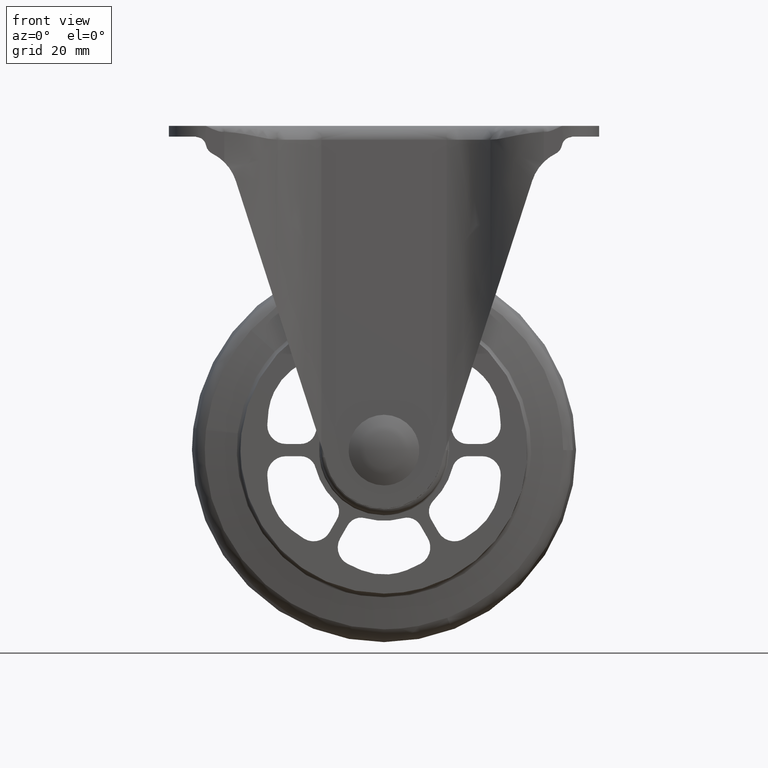
[diagram: clean part render]
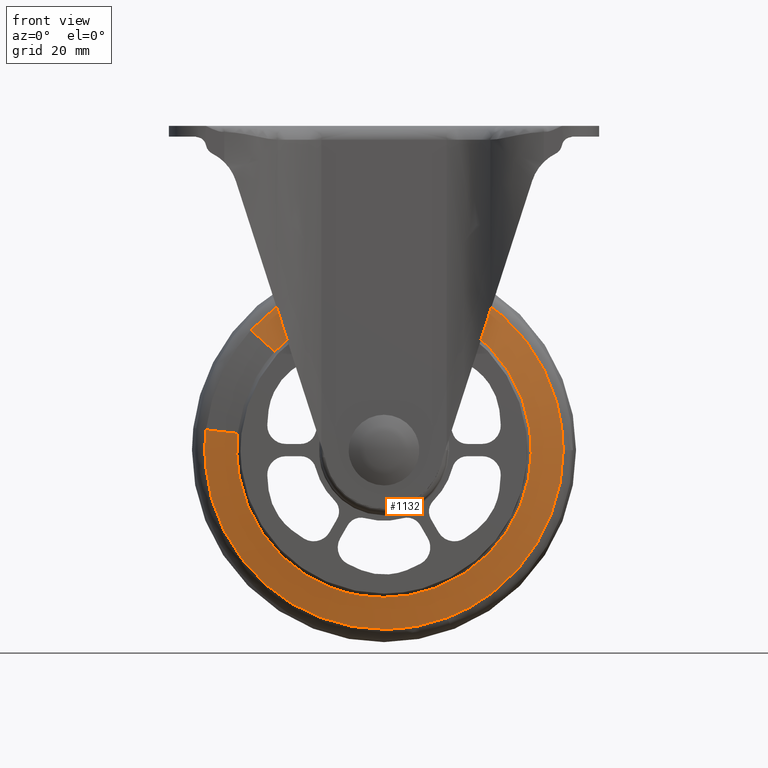
[diagram: same view with one face highlighted and labeled with its STEP entity id]
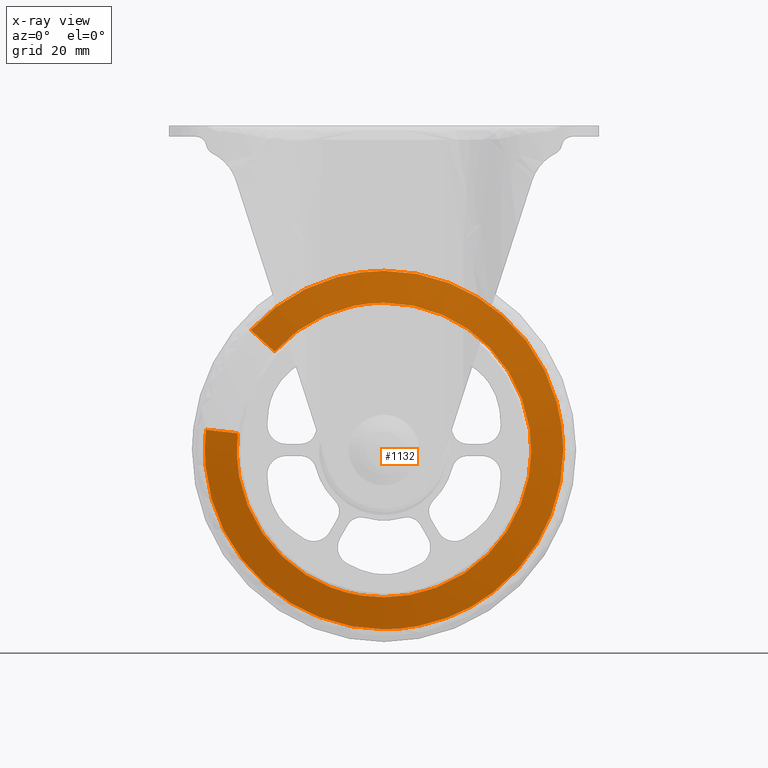
[diagram: x-ray of the same camera — body ghosted, the highlighted face saturated]
A machine part, front view. The second image highlights one B-rep face of the part: STEP entity #1132.
The next image is the same camera in x-ray: the body ghosted, the highlighted face saturated — about 0% of this face is hidden behind the body in this view.
In plain terms, the highlighted face is a freeform B-spline surface patch.
Its self-contained STEP definition (entity closure, byte-faithful):
#934=CARTESIAN_POINT('',(-35.404688449193927,-16.933381824167075,31.910486017992532));
#935=CARTESIAN_POINT('',(-18.979766938633500,-16.933381824167075,50.133938602073215));
#936=CARTESIAN_POINT('',(5.395616074959293,-16.933381824167071,47.356714510833918));
#937=CARTESIAN_POINT('',(52.752330585793210,-16.933381824167075,41.961098435874675));
#938=CARTESIAN_POINT('',(47.356714510833967,-16.933381824167071,-5.395616074959236));
#939=CARTESIAN_POINT('',(41.961098435874739,-16.933381824167075,-52.752330585793160));
#940=CARTESIAN_POINT('',(-5.395616074959179,-16.933381824167071,-47.356714510833918));
#941=CARTESIAN_POINT('',(-52.752330585793096,-16.933381824167075,-41.961098435874675));
#942=CARTESIAN_POINT('',(-47.356714510833861,-16.933381824167071,5.395616074959236));
#943=CARTESIAN_POINT('',(-43.515426536678717,-14.881109458047087,39.220749310033305));
#944=CARTESIAN_POINT('',(-23.327776350484832,-14.881109458047096,61.618949856415036));
#945=CARTESIAN_POINT('',(6.631679170597501,-14.881109458047090,58.205501067234422));
#946=CARTESIAN_POINT('',(64.837180237831916,-14.881109458047092,51.573821896636986));
#947=CARTESIAN_POINT('',(58.205501067234479,-14.881109458047090,-6.631679170597444));
#948=CARTESIAN_POINT('',(51.573821896637035,-14.881109458047092,-64.837180237831859));
#949=CARTESIAN_POINT('',(-6.631679170597387,-14.881109458047090,-58.205501067234422));
#950=CARTESIAN_POINT('',(-64.837180237831802,-14.881109458047092,-51.573821896636986));
#951=CARTESIAN_POINT('',(-58.205501067234373,-14.881109458047090,6.631679170597444));
#959=(BOUNDED_SURFACE()B_SPLINE_SURFACE(2,1,((#934,#943),(#935,#944),(#936,#945),(#937,#946),(#938,#947),(#939,#948),(#940,#949),(#941,#950),(#942,#951)),.UNSPECIFIED.,.F.,.F.,.U.)B_SPLINE_SURFACE_WITH_KNOTS((3,2,2,2,3),(2,2),(0.0,58.237176044852667,155.299136119607110,252.361096194361610,349.423056269116100),(0.0,11.110168477006770),.UNSPECIFIED.)GEOMETRIC_REPRESENTATION_ITEM()RATIONAL_B_SPLINE_SURFACE(((0.859411254969543,0.859411254969543),(0.824264068711928,0.824264068711928),(1.0,1.0),(0.707106781186548,0.707106781186548),(1.0,1.0),(0.707106781186548,0.707106781186548),(1.0,1.0),(0.707106781186548,0.707106781186548),(1.0,1.0)))REPRESENTATION_ITEM('')SURFACE());
#960=CARTESIAN_POINT('',(-35.597686389317431,-16.884547262504849,32.084436371476038));
#961=VERTEX_POINT('',#960);
#962=CARTESIAN_POINT('',(5.684342E-014,-16.884547262504899,47.922920753512798));
#963=VERTEX_POINT('',#962);
#964=CARTESIAN_POINT('',(-35.597686389317438,-16.884547262504849,32.084436371476038));
#965=CARTESIAN_POINT('',(-21.322352907841903,-16.884547262504903,47.922920753512813));
#966=CARTESIAN_POINT('',(5.684342E-014,-16.884547262504899,47.922920753512798));
#974=(BOUNDED_CURVE()B_SPLINE_CURVE(2,(#964,#965,#966),.UNSPECIFIED.,.F.,.U.)B_SPLINE_CURVE_WITH_KNOTS((3,3),(0.867172942263286,1.0),.UNSPECIFIED.)CURVE()GEOMETRIC_REPRESENTATION_ITEM()RATIONAL_B_SPLINE_CURVE((0.854127581578761,0.844383422055894,1.0))REPRESENTATION_ITEM(''));
#975=EDGE_CURVE('',#961,#963,#974,.T.);
#976=ORIENTED_EDGE('',*,*,#975,.T.);
#977=CARTESIAN_POINT('',(47.074074072112303,-16.884547262835639,-8.979859889335858));
#978=VERTEX_POINT('',#977);
#979=CARTESIAN_POINT('',(5.684342E-014,-16.884547262504899,47.922920753512798));
#980=CARTESIAN_POINT('',(47.922920753512862,-16.884547262504896,47.922920753512805));
#981=CARTESIAN_POINT('',(47.922920753512862,-16.884547262504899,0.0));
#982=CARTESIAN_POINT('',(47.922920753512862,-16.884547262504903,-4.530049762693329));
#983=CARTESIAN_POINT('',(47.074074072112303,-16.884547262835639,-8.979859889335858));
#991=(BOUNDED_CURVE()B_SPLINE_CURVE(2,(#979,#980,#981,#982,#983),.UNSPECIFIED.,.F.,.U.)B_SPLINE_CURVE_WITH_KNOTS((3,2,3),(0.0,0.250000000000000,0.282161366260135),.UNSPECIFIED.)CURVE()GEOMETRIC_REPRESENTATION_ITEM()RATIONAL_B_SPLINE_CURVE((1.0,0.707106781186548,1.0,0.962320615658523,0.934335795159147))REPRESENTATION_ITEM(''));
#992=EDGE_CURVE('',#963,#978,#991,.T.);
#993=ORIENTED_EDGE('',*,*,#992,.T.);
#994=CARTESIAN_POINT('',(5.684342E-014,-16.884547262504899,-47.922920753512798));
#995=VERTEX_POINT('',#994);
#996=CARTESIAN_POINT('',(47.074074072112303,-16.884547262835639,-8.979859889335858));
#997=CARTESIAN_POINT('',(39.645287908297817,-16.884547262504906,-47.922920753512813));
#998=CARTESIAN_POINT('',(5.684342E-014,-16.884547262504899,-47.922920753512798));
#1006=(BOUNDED_CURVE()B_SPLINE_CURVE(2,(#996,#997,#998),.UNSPECIFIED.,.F.,.U.)B_SPLINE_CURVE_WITH_KNOTS((3,3),(0.282161366260135,0.500000000000000),.UNSPECIFIED.)CURVE()GEOMETRIC_REPRESENTATION_ITEM()RATIONAL_B_SPLINE_CURVE((0.934335795159147,0.744786165528024,1.0))REPRESENTATION_ITEM(''));
#1007=EDGE_CURVE('',#978,#995,#1006,.T.);
#1008=ORIENTED_EDGE('',*,*,#1007,.T.);
#1009=CARTESIAN_POINT('',(-17.058223496415639,-16.884547264592531,-44.784186312014562));
#1010=VERTEX_POINT('',#1009);
#1011=CARTESIAN_POINT('',(5.684342E-014,-16.884547262504899,-47.922920753512798));
#1012=CARTESIAN_POINT('',(-8.817877278220680,-16.884547262504896,-47.922920753512798));
#1013=CARTESIAN_POINT('',(-17.058223496415639,-16.884547264592538,-44.784186312014555));
#1021=(BOUNDED_CURVE()B_SPLINE_CURVE(2,(#1011,#1012,#1013),.UNSPECIFIED.,.F.,.U.)B_SPLINE_CURVE_WITH_KNOTS((3,3),(0.500000000000000,0.560447230665275),.UNSPECIFIED.)CURVE()GEOMETRIC_REPRESENTATION_ITEM()RATIONAL_B_SPLINE_CURVE((1.0,0.929181664168354,0.892609506587479))REPRESENTATION_ITEM(''));
#1022=EDGE_CURVE('',#995,#1010,#1021,.T.);
#1023=ORIENTED_EDGE('',*,*,#1022,.T.);
#1024=CARTESIAN_POINT('',(-47.614865302517259,-16.884547262498369,5.425028642682638));
#1025=VERTEX_POINT('',#1024);
#1026=CARTESIAN_POINT('',(-17.058223496415643,-16.884547264592541,-44.784186312014548));
#1027=CARTESIAN_POINT('',(-47.922920753512756,-16.884547262504903,-33.027873497320073));
#1028=CARTESIAN_POINT('',(-47.922920753512749,-16.884547262504899,0.0));
#1029=CARTESIAN_POINT('',(-47.922920753512741,-16.884547262504903,2.721260649557558));
#1030=CARTESIAN_POINT('',(-47.614865302517259,-16.884547262498373,5.425028642682638));
#1038=(BOUNDED_CURVE()B_SPLINE_CURVE(2,(#1026,#1027,#1028,#1029,#1030),.UNSPECIFIED.,.F.,.U.)B_SPLINE_CURVE_WITH_KNOTS((3,2,3),(0.560447230665276,0.750000000000000,0.769614860201807),.UNSPECIFIED.)CURVE()GEOMETRIC_REPRESENTATION_ITEM()RATIONAL_B_SPLINE_CURVE((0.892609506587478,0.777925117018195,1.0,0.977019761835668,0.957645556943317))REPRESENTATION_ITEM(''));
#1039=EDGE_CURVE('',#1010,#1025,#1038,.T.);
#1040=ORIENTED_EDGE('',*,*,#1039,.T.);
#1041=CARTESIAN_POINT('',(-57.940895891246868,-14.931164999999851,6.601531218915447));
#1042=VERTEX_POINT('',#1041);
#1043=CARTESIAN_POINT('',(-47.614865302517259,-16.884547262498369,5.425028642682638));
#1044=CARTESIAN_POINT('',(-57.940895891246868,-14.931164999999851,6.601531218915447));
#1045=QUASI_UNIFORM_CURVE('',1,(#1043,#1044),.UNSPECIFIED.,.F.,.U.);
#1046=EDGE_CURVE('',#1025,#1042,#1045,.T.);
#1047=ORIENTED_EDGE('',*,*,#1046,.T.);
#1048=CARTESIAN_POINT('',(5.684342E-014,-14.931164999999959,-58.315758000000002));
#1049=VERTEX_POINT('',#1048);
#1050=CARTESIAN_POINT('',(5.684342E-014,-14.931164999999959,-58.315758000000002));
#1051=CARTESIAN_POINT('',(-58.315757999999946,-14.931164999999963,-58.315757999999988));
#1052=CARTESIAN_POINT('',(-58.315757999999953,-14.931164999999959,0.0));
#1053=CARTESIAN_POINT('',(-58.315757999999953,-14.931164999999956,3.311408716029983));
#1054=CARTESIAN_POINT('',(-57.940895891246868,-14.931164999999858,6.601531218915447));
#1062=(BOUNDED_CURVE()B_SPLINE_CURVE(2,(#1050,#1051,#1052,#1053,#1054),.UNSPECIFIED.,.F.,.U.)B_SPLINE_CURVE_WITH_KNOTS((3,2,3),(0.500000000000000,0.750000000000000,0.769614860200149),.UNSPECIFIED.)CURVE()GEOMETRIC_REPRESENTATION_ITEM()RATIONAL_B_SPLINE_CURVE((1.0,0.707106781186547,1.0,0.977019761837610,0.957645556946591))REPRESENTATION_ITEM(''));
#1063=EDGE_CURVE('',#1049,#1042,#1062,.T.);
#1064=ORIENTED_EDGE('',*,*,#1063,.F.);
#1065=CARTESIAN_POINT('',(20.603071982791700,-14.931164881610989,-54.554936110432912));
#1066=VERTEX_POINT('',#1065);
#1067=CARTESIAN_POINT('',(20.603071982791693,-14.931164881610988,-54.554936110432905));
#1068=CARTESIAN_POINT('',(10.644780467243919,-14.931164999999957,-58.315758000000017));
#1069=CARTESIAN_POINT('',(5.684342E-014,-14.931164999999959,-58.315758000000002));
#1077=(BOUNDED_CURVE()B_SPLINE_CURVE(2,(#1067,#1068,#1069),.UNSPECIFIED.,.F.,.U.)B_SPLINE_CURVE_WITH_KNOTS((3,3),(0.439999999999456,0.500000000000000),.UNSPECIFIED.)CURVE()GEOMETRIC_REPRESENTATION_ITEM()RATIONAL_B_SPLINE_CURVE((0.893152553776190,0.929705627484134,1.0))REPRESENTATION_ITEM(''));
#1078=EDGE_CURVE('',#1066,#1049,#1077,.T.);
#1079=ORIENTED_EDGE('',*,*,#1078,.F.);
#1080=CARTESIAN_POINT('',(58.315757978773213,-14.931164882421051,6.522297E-016));
#1081=VERTEX_POINT('',#1080);
#1082=CARTESIAN_POINT('',(58.315757978773213,-14.931164882421049,6.522297E-016));
#1083=CARTESIAN_POINT('',(58.315757999999740,-14.931164999999961,-40.312463493076443));
#1084=CARTESIAN_POINT('',(20.603071982791693,-14.931164881610982,-54.554936110432891));
#1092=(BOUNDED_CURVE()B_SPLINE_CURVE(2,(#1082,#1083,#1084),.UNSPECIFIED.,.F.,.U.)B_SPLINE_CURVE_WITH_KNOTS((3,3),(0.250000000000001,0.439999999999456),.UNSPECIFIED.)CURVE()GEOMETRIC_REPRESENTATION_ITEM()RATIONAL_B_SPLINE_CURVE((0.999999999999997,0.777401153702414,0.893152553776190))REPRESENTATION_ITEM(''));
#1093=EDGE_CURVE('',#1081,#1066,#1092,.T.);
#1094=ORIENTED_EDGE('',*,*,#1093,.F.);
#1095=CARTESIAN_POINT('',(5.684342E-014,-14.931164999999959,58.315758000000002));
#1096=VERTEX_POINT('',#1095);
#1097=CARTESIAN_POINT('',(5.684342E-014,-14.931164999999959,58.315758000000002));
#1098=CARTESIAN_POINT('',(58.315758000000528,-14.931164999999956,58.315757999999988));
#1099=CARTESIAN_POINT('',(58.315757978773213,-14.931164882421044,6.522297E-016));
#1107=(BOUNDED_CURVE()B_SPLINE_CURVE(2,(#1097,#1098,#1099),.UNSPECIFIED.,.F.,.U.)B_SPLINE_CURVE_WITH_KNOTS((3,3),(0.0,0.250000000000001),.UNSPECIFIED.)CURVE()GEOMETRIC_REPRESENTATION_ITEM()RATIONAL_B_SPLINE_CURVE((1.0,0.707106781186546,1.000000000000003))REPRESENTATION_ITEM(''));
#1108=EDGE_CURVE('',#1096,#1081,#1107,.T.);
#1109=ORIENTED_EDGE('',*,*,#1108,.F.);
#1110=CARTESIAN_POINT('',(-43.317603188591512,-14.931164999999879,39.042449783669298));
#1111=VERTEX_POINT('',#1110);
#1112=CARTESIAN_POINT('',(-43.317603188591505,-14.931164999999872,39.042449783669298));
#1113=CARTESIAN_POINT('',(-25.946439670468823,-14.931164999999961,58.315758000000010));
#1114=CARTESIAN_POINT('',(5.684342E-014,-14.931164999999959,58.315758000000002));
#1122=(BOUNDED_CURVE()B_SPLINE_CURVE(2,(#1112,#1113,#1114),.UNSPECIFIED.,.F.,.U.)B_SPLINE_CURVE_WITH_KNOTS((3,3),(0.867172942263343,1.0),.UNSPECIFIED.)CURVE()GEOMETRIC_REPRESENTATION_ITEM()RATIONAL_B_SPLINE_CURVE((0.854127581578753,0.844383422055960,1.0))REPRESENTATION_ITEM(''));
#1123=EDGE_CURVE('',#1111,#1096,#1122,.T.);
#1124=ORIENTED_EDGE('',*,*,#1123,.F.);
#1125=CARTESIAN_POINT('',(-35.597686389317431,-16.884547262504849,32.084436371476038));
#1126=CARTESIAN_POINT('',(-43.317603188591512,-14.931164999999879,39.042449783669298));
#1127=QUASI_UNIFORM_CURVE('',1,(#1125,#1126),.UNSPECIFIED.,.F.,.U.);
#1128=EDGE_CURVE('',#961,#1111,#1127,.T.);
#1129=ORIENTED_EDGE('',*,*,#1128,.F.);
#1130=EDGE_LOOP('',(#976,#993,#1008,#1023,#1040,#1047,#1064,#1079,#1094,#1109,#1124,#1129));
#1131=FACE_OUTER_BOUND('',#1130,.T.);
#1132=ADVANCED_FACE('',(#1131),#959,.T.);